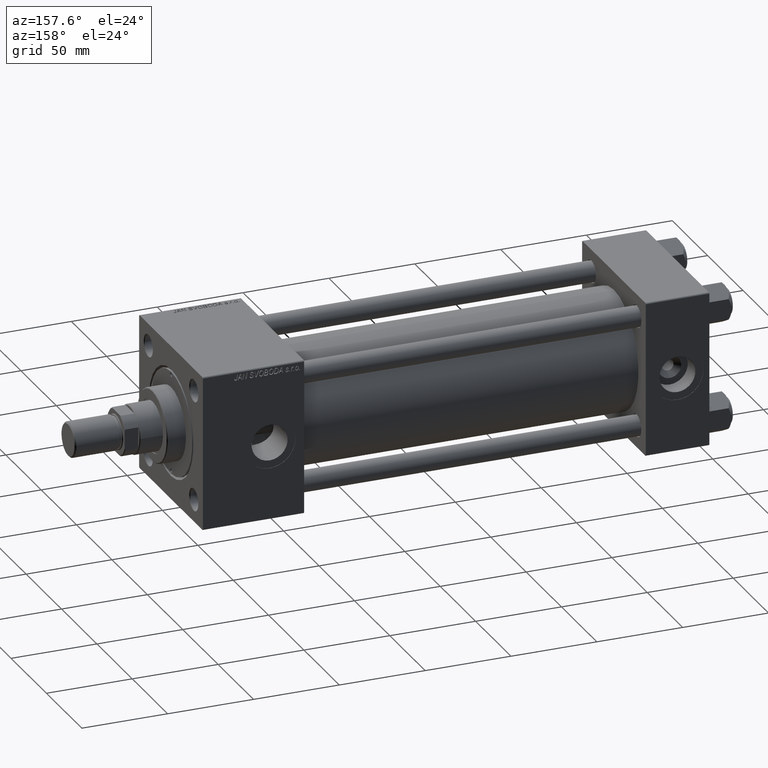
[diagram: clean part render]
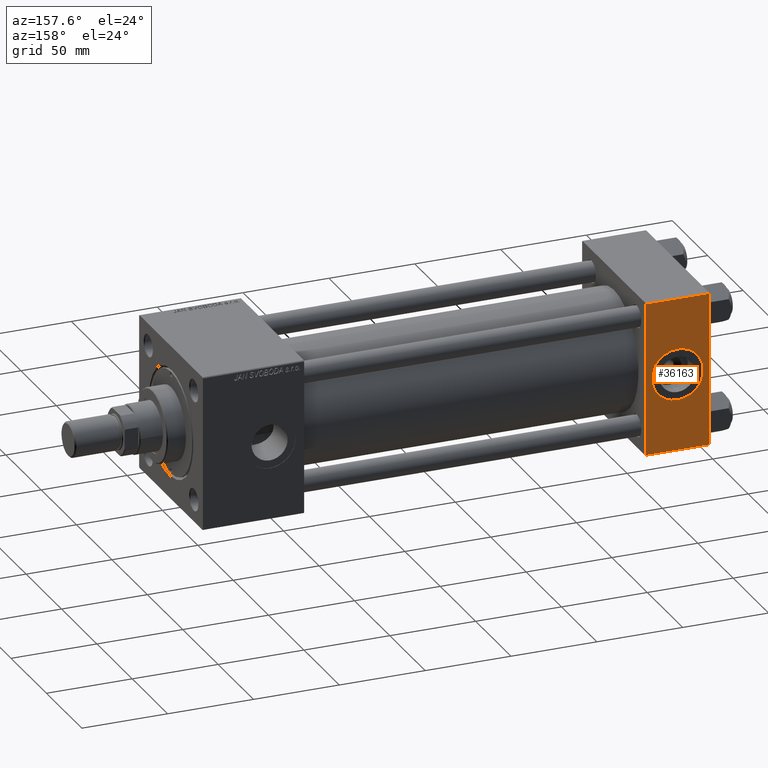
[diagram: same view with one face highlighted and labeled with its STEP entity id]
A machine part, auxiliary view. The second image highlights one B-rep face of the part: STEP entity #36163.
In plain terms, the highlighted planar face has unit normal (0, 1, 0).
Its self-contained STEP definition (entity closure, byte-faithful):
#103 = LINE ( 'NONE', #24736, #50359 ) ;
#2661 = DIRECTION ( 'NONE',  ( 0.000000000000000000, 0.000000000000000000, 1.000000000000000000 ) ) ;
#3566 = AXIS2_PLACEMENT_3D ( 'NONE', #6146, #38790, #14461 ) ;
#4672 = VERTEX_POINT ( 'NONE', #17211 ) ;
#5790 = PLANE ( 'NONE',  #29475 ) ;
#6146 = CARTESIAN_POINT ( 'NONE',  ( 18.50000000000000000, 44.99999999999998579, 0.000000000000000000 ) ) ;
#6260 = EDGE_CURVE ( 'NONE', #4672, #29174, #39397, .T. ) ;
#6405 = DIRECTION ( 'NONE',  ( 0.000000000000000000, 1.000000000000000000, 0.000000000000000000 ) ) ;
#9312 = VECTOR ( 'NONE', #51425, 1000.000000000000000 ) ;
#10094 = FACE_OUTER_BOUND ( 'NONE', #46733, .T. ) ;
#10176 = CARTESIAN_POINT ( 'NONE',  ( 37.00000000000000000, 44.99999999999998579, 45.00000000000001421 ) ) ;
#10453 = LINE ( 'NONE', #10176, #13593 ) ;
#10565 = VERTEX_POINT ( 'NONE', #16762 ) ;
#10894 = ORIENTED_EDGE ( 'NONE', *, *, #29520, .F. ) ;
#11037 = CARTESIAN_POINT ( 'NONE',  ( 0.000000000000000000, 44.99999999999998579, -44.49999999999995737 ) ) ;
#11959 = EDGE_LOOP ( 'NONE', ( #38049, #10894 ) ) ;
#13593 = VECTOR ( 'NONE', #26778, 1000.000000000000000 ) ;
#14461 = DIRECTION ( 'NONE',  ( 0.000000000000000000, 0.000000000000000000, 1.000000000000000000 ) ) ;
#14643 = EDGE_CURVE ( 'NONE', #10565, #40859, #33374, .T. ) ;
#15730 = ORIENTED_EDGE ( 'NONE', *, *, #14643, .F. ) ;
#16353 = AXIS2_PLACEMENT_3D ( 'NONE', #43069, #6405, #2661 ) ;
#16762 = CARTESIAN_POINT ( 'NONE',  ( 0.000000000000000000, 44.99999999999998579, 44.50000000000001421 ) ) ;
#17211 = CARTESIAN_POINT ( 'NONE',  ( 18.50000000000000000, 44.99999999999998579, 15.00000000000000178 ) ) ;
#19475 = EDGE_CURVE ( 'NONE', #10565, #27514, #26559, .T. ) ;
#21090 = EDGE_CURVE ( 'NONE', #52323, #40859, #103, .T. ) ;
#21146 = VECTOR ( 'NONE', #37138, 1000.000000000000000 ) ;
#22426 = CARTESIAN_POINT ( 'NONE',  ( 37.00000000000000000, 44.99999999999998579, 45.00000000000001421 ) ) ;
#24736 = CARTESIAN_POINT ( 'NONE',  ( 37.00000000000000000, 44.99999999999998579, -44.49999999999998579 ) ) ;
#26559 = LINE ( 'NONE', #42871, #9312 ) ;
#26628 = CIRCLE ( 'NONE', #3566, 15.00000000000000178 ) ;
#26778 = DIRECTION ( 'NONE',  ( 0.000000000000000000, 0.000000000000000000, -1.000000000000000000 ) ) ;
#27514 = VERTEX_POINT ( 'NONE', #28204 ) ;
#28204 = CARTESIAN_POINT ( 'NONE',  ( 37.00000000000000000, 44.99999999999998579, 44.50000000000001421 ) ) ;
#29174 = VERTEX_POINT ( 'NONE', #33916 ) ;
#29375 = CARTESIAN_POINT ( 'NONE',  ( 0.000000000000000000, 44.99999999999998579, 45.00000000000001421 ) ) ;
#29475 = AXIS2_PLACEMENT_3D ( 'NONE', #22426, #34168, #38721 ) ;
#29520 = EDGE_CURVE ( 'NONE', #29174, #4672, #26628, .T. ) ;
#30432 = FACE_BOUND ( 'NONE', #11959, .T. ) ;
#33374 = LINE ( 'NONE', #29375, #21146 ) ;
#33916 = CARTESIAN_POINT ( 'NONE',  ( 18.50000000000000355, 44.99999999999998579, -15.00000000000000178 ) ) ;
#34168 = DIRECTION ( 'NONE',  ( -0.000000000000000000, 1.000000000000000000, 0.000000000000000000 ) ) ;
#36163 = ADVANCED_FACE ( 'NONE', ( #30432, #10094 ), #5790, .T. ) ;
#37138 = DIRECTION ( 'NONE',  ( 0.000000000000000000, 0.000000000000000000, -1.000000000000000000 ) ) ;
#37549 = DIRECTION ( 'NONE',  ( -1.000000000000000000, 0.000000000000000000, 0.000000000000000000 ) ) ;
#38049 = ORIENTED_EDGE ( 'NONE', *, *, #6260, .F. ) ;
#38635 = ORIENTED_EDGE ( 'NONE', *, *, #19475, .T. ) ;
#38721 = DIRECTION ( 'NONE',  ( 0.000000000000000000, -0.000000000000000000, 1.000000000000000000 ) ) ;
#38790 = DIRECTION ( 'NONE',  ( 0.000000000000000000, 1.000000000000000000, 0.000000000000000000 ) ) ;
#39397 = CIRCLE ( 'NONE', #16353, 15.00000000000000178 ) ;
#40336 = ORIENTED_EDGE ( 'NONE', *, *, #41241, .T. ) ;
#40859 = VERTEX_POINT ( 'NONE', #11037 ) ;
#41241 = EDGE_CURVE ( 'NONE', #27514, #52323, #10453, .T. ) ;
#42871 = CARTESIAN_POINT ( 'NONE',  ( 37.00000000000000000, 44.99999999999998579, 44.50000000000001421 ) ) ;
#43069 = CARTESIAN_POINT ( 'NONE',  ( 18.50000000000000000, 44.99999999999998579, 0.000000000000000000 ) ) ;
#46733 = EDGE_LOOP ( 'NONE', ( #40336, #49706, #15730, #38635 ) ) ;
#49706 = ORIENTED_EDGE ( 'NONE', *, *, #21090, .T. ) ;
#50246 = CARTESIAN_POINT ( 'NONE',  ( 37.00000000000000000, 44.99999999999998579, -44.49999999999995737 ) ) ;
#50359 = VECTOR ( 'NONE', #37549, 1000.000000000000000 ) ;
#51425 = DIRECTION ( 'NONE',  ( 1.000000000000000000, 0.000000000000000000, 0.000000000000000000 ) ) ;
#52323 = VERTEX_POINT ( 'NONE', #50246 ) ;